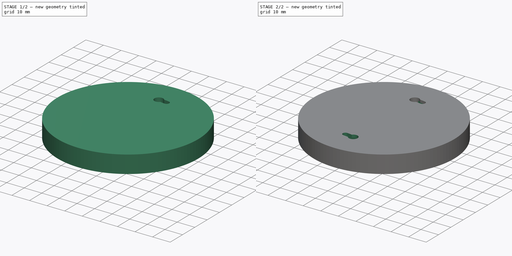
[diagram: build sequence overview — one tinted view per stage of 2, left to right]
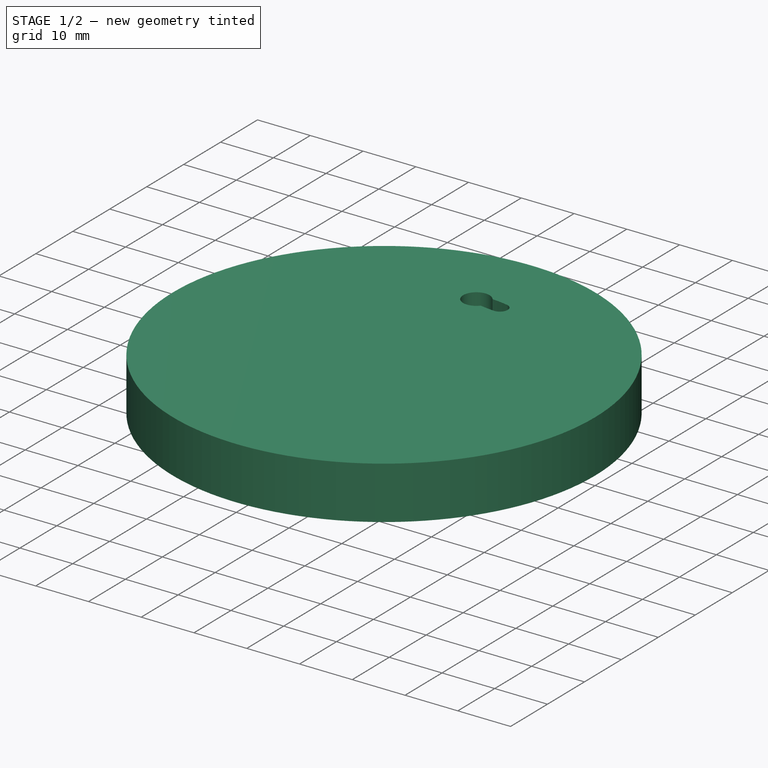
[diagram: stage 1 of 2 — iso view after this stage's code; geometry added in this stage tinted green]
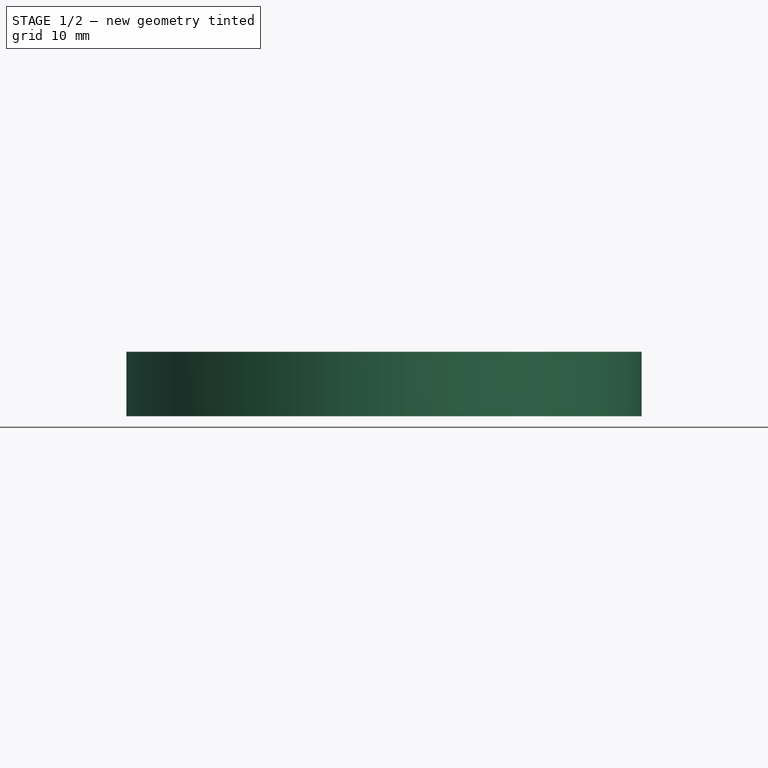
[diagram: stage 1 of 2 — front view after this stage's code; geometry added in this stage tinted green]
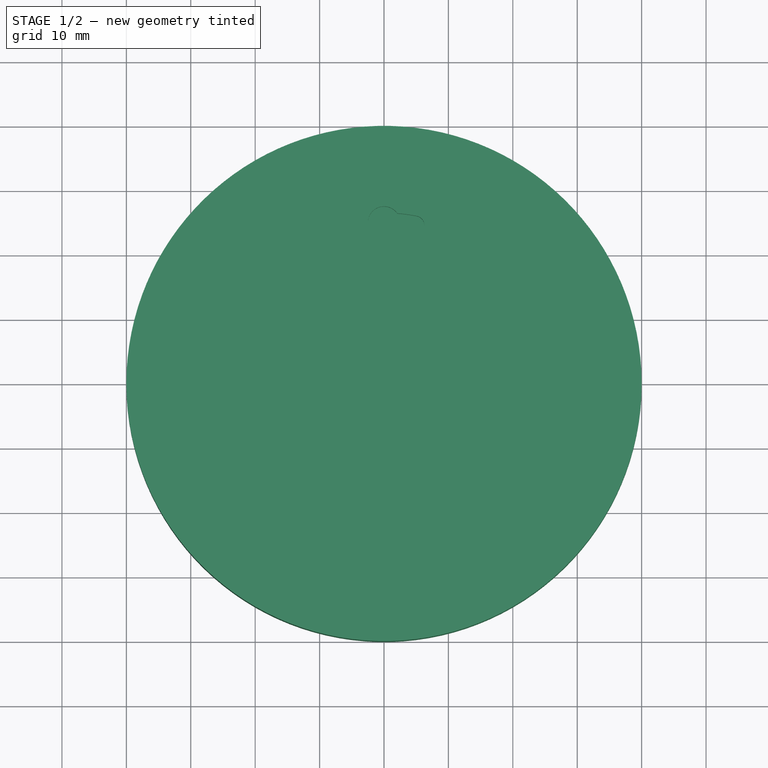
[diagram: stage 1 of 2 — top view after this stage's code; geometry added in this stage tinted green]
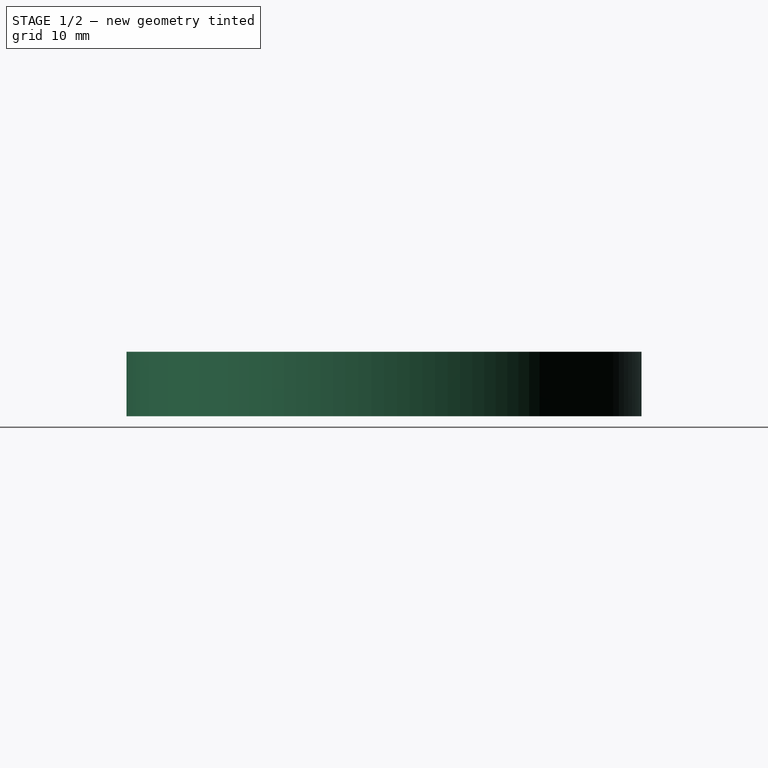
[diagram: stage 1 of 2 — right view after this stage's code; geometry added in this stage tinted green]
FCSTD DOCUMENT  (FreeCAD 0.20R29410 (Git))
Label: MangoJelly_Solutions_Tutorial_Ep13_2
License: All rights reserved
LicenseURL: http://en.wikipedia.org/wiki/All_rights_reserved
objects: Sketcher::SketchObject×3, PartDesign::Pocket×2, PartDesign::Pad×1, PartDesign::PolarPattern×1, PartDesign::Body×1
note: 11 computed .brp shape members not serialized (recipe doc carries the construction recipe); baked Part::Feature solids carry a one-line shape summary decoded from their .brp

FEATURE [Sketcher::SketchObject] Sketch
  FullyConstrained = true
  MapMode = 5
  Support = -> [XY_Plane]
  sketch-geometry (1):
    g0: Circle CenterX=0 CenterY=0 CenterZ=0 NormalX=0 NormalY=0 NormalZ=1 AngleXU=0 Radius=40
  constraints (2):
    c: Coincident(g0,g-1)
    c: Diameter(g0) = 80
FEATURE [PartDesign::Pad] Pad
  Direction = (0,0,1)
  Length = 10
  Length2 = 10
  Profile = -> Sketch
  ReferenceAxis = -> Sketch [N_Axis]
  Type = 0
FEATURE [Sketcher::SketchObject] Sketch001
  FullyConstrained = true
  MapMode = 5
  Placement = pos=(0,0,10) rot=(0,0,1;0rad)
  Support = -> [Pad]
  sketch-geometry (9):
    g0: Circle CenterX=0 CenterY=0 CenterZ=0 NormalX=0 NormalY=0 NormalZ=1 AngleXU=0 Radius=26.5
    g1: Circle CenterX=0 CenterY=0 CenterZ=0 NormalX=0 NormalY=0 NormalZ=1 AngleXU=0 Radius=23.5
    g2: ArcOfCircle CenterX=0 CenterY=25 CenterZ=0 NormalX=0 NormalY=0 NormalZ=1 AngleXU=0 Radius=2.5 StartAngle=0.604074 EndAngle=5.59905
    g3: ArcOfCircle CenterX=4.77022 CenterY=24.5407 CenterZ=0 NormalX=0 NormalY=0 NormalZ=1 AngleXU=0 Radius=1.5 StartAngle=4.52041 EndAngle=7.662
    g4: LineSegment StartX=4.77022 StartY=24.5407 StartZ=0 EndX=0 EndY=0 EndZ=0
    g5: ArcOfCircle CenterX=-5.36e-14 CenterY=6.8e-15 CenterZ=0 NormalX=0 NormalY=0 NormalZ=1 AngleXU=0 Radius=26.5 StartAngle=1.37881 EndAngle=1.49307
    g6: ArcOfCircle CenterX=6.42144 CenterY=46.4882 CenterZ=0 NormalX=0 NormalY=0 NormalZ=1 AngleXU=0 Radius=23.5 StartAngle=4.5204 EndAngle=4.62985
    g7: GeomPoint X=0 Y=23.5 Z=0
    g8: GeomPoint X=0 Y=26.5 Z=0
  constraints (25):
    c: Coincident(g0,g-1)
    c: Coincident(g1,g0)
    c: PointOnObject(g2,g-2)
    c: Diameter(g2) = 5
    c: Coincident(g4,g3)
    c: Coincident(g4,g0)
    c: Angle(g4,g-2) = 0.191986
    c: DistanceY(g0,g2) = 25
    c: Equal(g5,g0)
    c: PointOnObject(g5,g0)
    c: Equal(g6,g1)
    c: PointOnObject(g6,g1)
    c: Coincident(g3,g6)
    c: Symmetric(g3,g3,g3)
    c: Coincident(g3,g5)
    c: Coincident(g5,g2)
    c: Coincident(g6,g2)
    c: Diameter(g3) = 3
    c: PointOnObject(g7,g1)
    c: PointOnObject(g8,g0)
    c: Symmetric(g8,g7,g2)
    c: DistanceY(g7,g8) = 3
    c: Vertical(g8,g2)
    c: PointOnObject(g3,g0)
    c: PointOnObject(g3,g1)
FEATURE [PartDesign::Pocket] Pocket
  BaseFeature = -> Pad
  Direction = (0,0,-1)
  Length = 3
  Length2 = 5
  Profile = -> Sketch001
  ReferenceAxis = -> Sketch001 [N_Axis]
  Type = 0
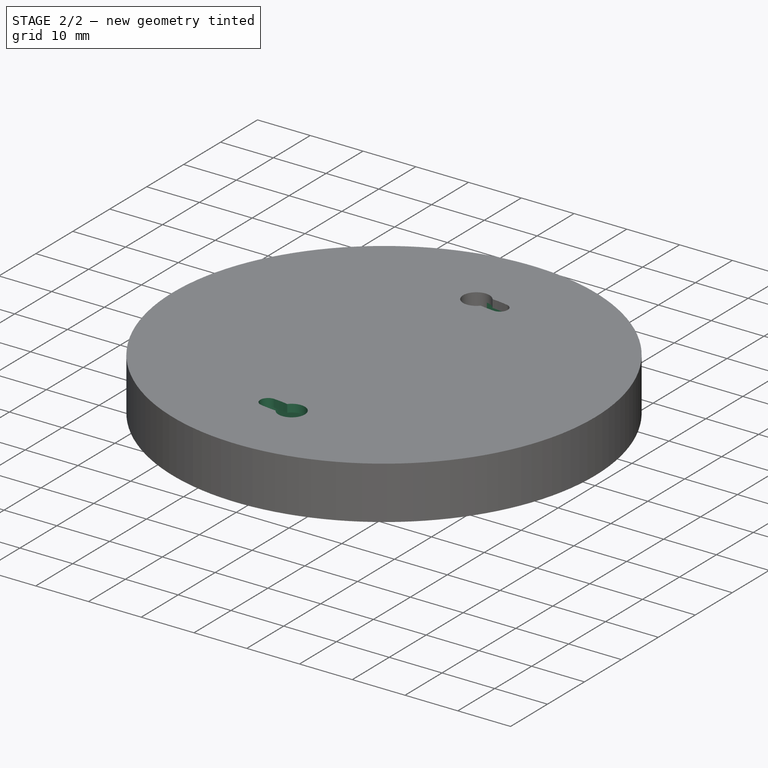
[diagram: stage 2 of 2 — iso view after this stage's code; geometry added in this stage tinted green]
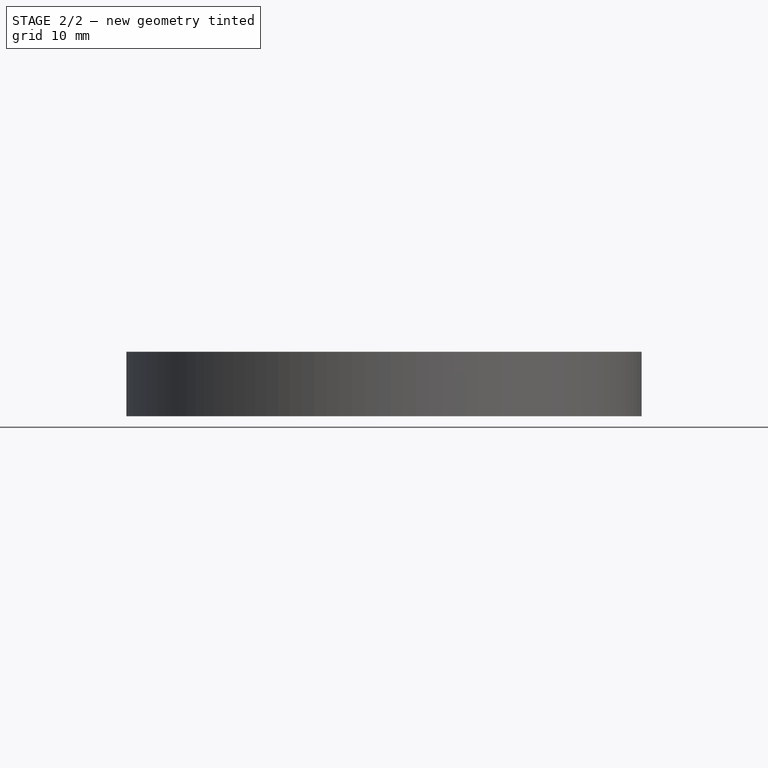
[diagram: stage 2 of 2 — front view after this stage's code; geometry added in this stage tinted green]
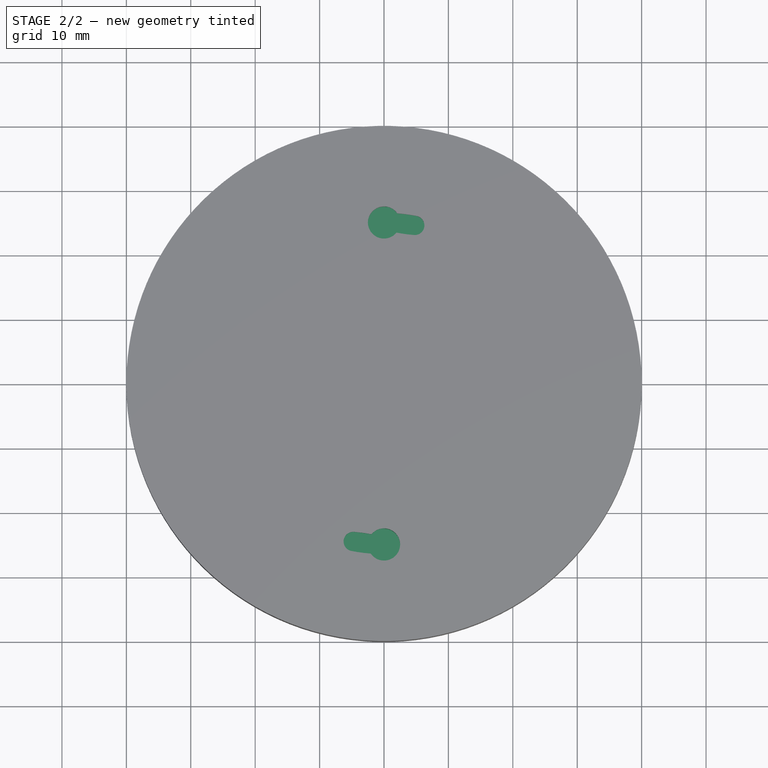
[diagram: stage 2 of 2 — top view after this stage's code; geometry added in this stage tinted green]
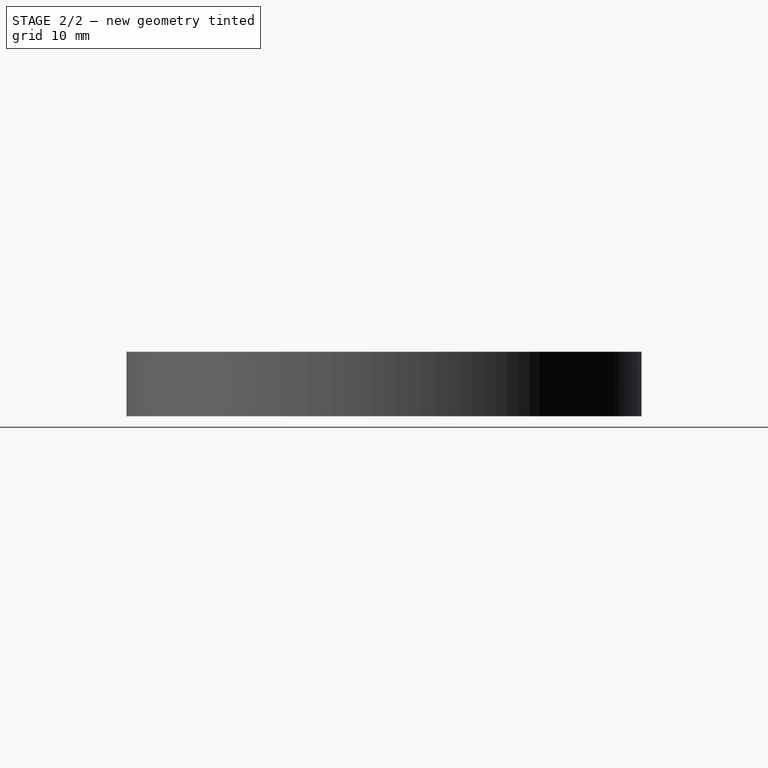
[diagram: stage 2 of 2 — right view after this stage's code; geometry added in this stage tinted green]
FEATURE [Sketcher::SketchObject] Sketch002
  AttachmentOffset = pos=(0,0,-1.5) rot=(0,0,1;0rad)
  ExternalGeometry = -> [Pocket]
  FullyConstrained = true
  MapMode = 5
  Placement = pos=(0,0,8.5) rot=(0,0,1;0rad)
  Support = -> [Pocket]
  sketch-geometry (4):
    g0: ArcOfCircle CenterX=0 CenterY=25 CenterZ=0 NormalX=0 NormalY=0 NormalZ=1 AngleXU=0 Radius=2.5 StartAngle=1.4748 EndAngle=4.6164
    g1: ArcOfCircle CenterX=4.77022 CenterY=24.5407 CenterZ=0 NormalX=0 NormalY=0 NormalZ=1 AngleXU=0 Radius=2.5 StartAngle=4.6164 EndAngle=7.75799
    g2: LineSegment StartX=-0.239614 StartY=22.5115 StartZ=0 EndX=4.53061 EndY=22.0522 EndZ=0
    g3: LineSegment StartX=5.00984 StartY=27.0292 StartZ=0 EndX=0.239614 EndY=27.4885 EndZ=0
  constraints (8):
    c: Tangent(g0,g2) = -1.5708
    c: Tangent(g2,g1) = -1.5708
    c: Tangent(g1,g3) = -1.5708
    c: Tangent(g3,g0) = -1.5708
    c: Equal(g0,g1)
    c: Coincident(g0,g-3)
    c: Coincident(g1,g-4)
    c: Equal(g0,g-3)
FEATURE [PartDesign::Pocket] Pocket001
  BaseFeature = -> Pocket
  Direction = (0,0,-1)
  Length = 1.5
  Length2 = 5
  Offset = 0.5
  Profile = -> Sketch002
  ReferenceAxis = -> Sketch002 [N_Axis]
  Type = 2
FEATURE [PartDesign::PolarPattern] PolarPattern
  Angle = 360
  Axis = -> Sketch001 [N_Axis]
  BaseFeature = -> Pocket001
  Occurrences = 2
  Originals = -> [Pocket,Pocket001]
FEATURE [PartDesign::Body] Body
  Group = -> [Sketch,Pad,Sketch001,Pocket,Sketch002,Pocket001,PolarPattern]
  Origin = -> Origin
  Tip = -> PolarPattern
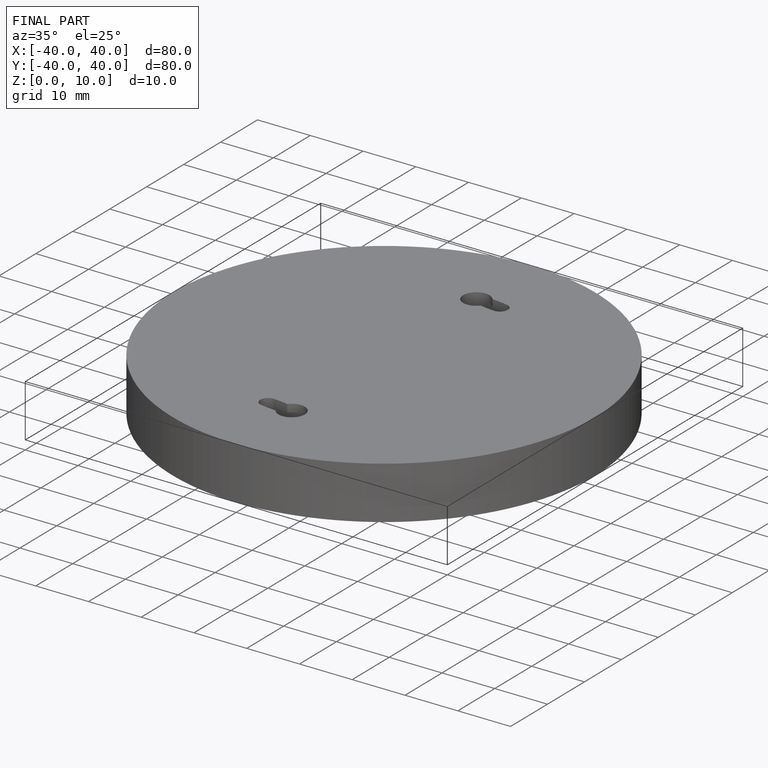
[diagram: finished part — iso view with bounding-box wireframe]
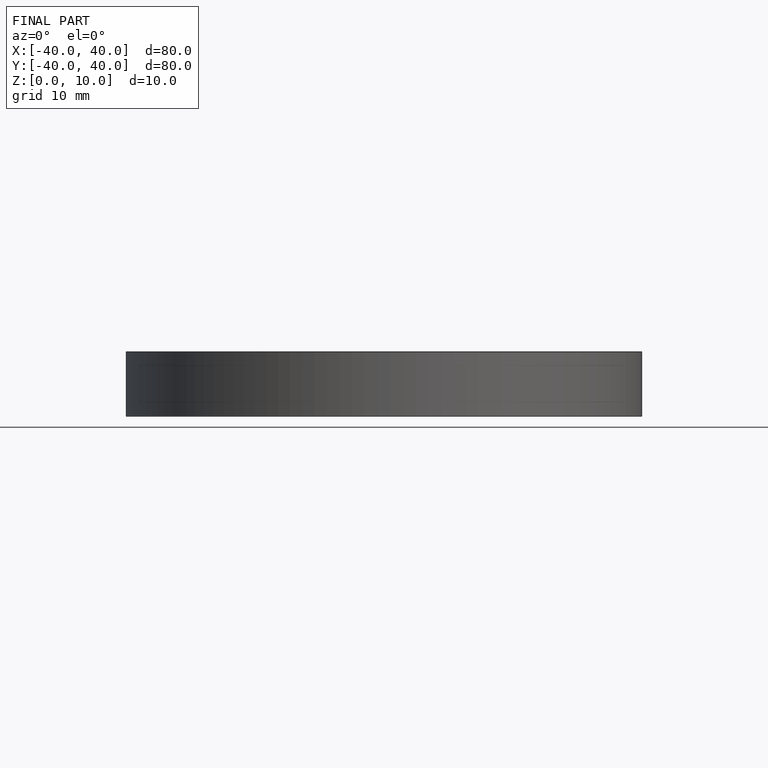
[diagram: finished part — front view with bounding-box wireframe]
